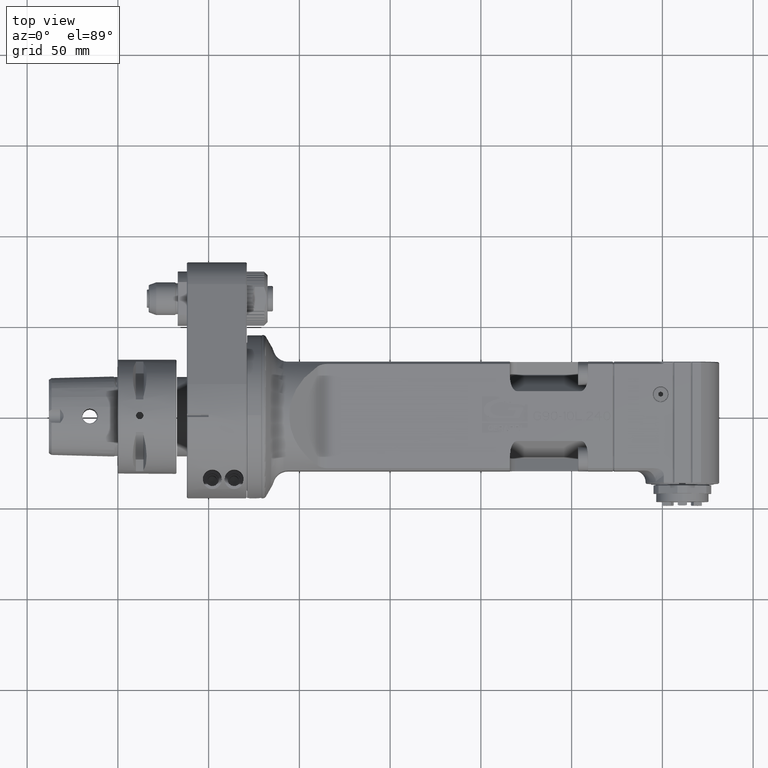
[diagram: clean part render]
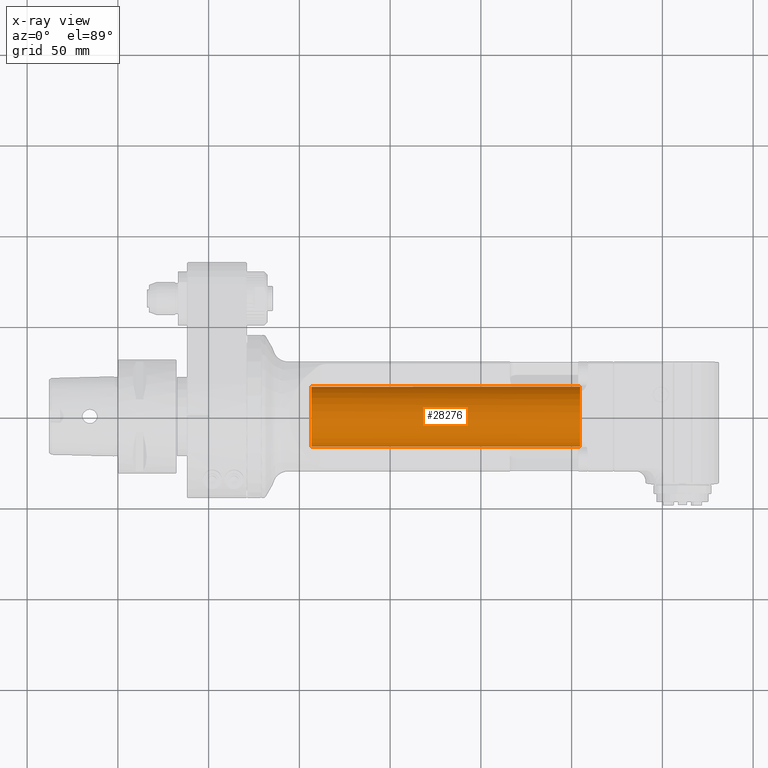
[diagram: x-ray — body ghosted, one internal face saturated and labeled with its STEP entity id]
A machine part, top view, then the same camera in x-ray: the body is ghosted and one INTERNAL B-rep face — a face not visible from any outside direction — is saturated and labeled: STEP entity #28276.
In plain terms, the highlighted cylindrical surface (bore or boss wall) has radius 16.5 mm, axis along (1, 0, 0).
Its self-contained STEP definition (entity closure, byte-faithful):
#2019=CIRCLE('',#30908,16.5);
#2020=CIRCLE('',#30909,16.5);
#2021=CIRCLE('',#30911,16.5);
#2286=CYLINDRICAL_SURFACE('',#30910,16.5);
#3835=FACE_OUTER_BOUND('',#5545,.T.);
#5545=EDGE_LOOP('',(#25689,#25690,#25691,#25692,#25693));
#8155=LINE('',#58934,#10759);
#10759=VECTOR('',#38664,16.5);
#13423=VERTEX_POINT('',#58927);
#13424=VERTEX_POINT('',#58928);
#13425=VERTEX_POINT('',#58933);
#17516=EDGE_CURVE('',#13423,#13424,#2019,.T.);
#17517=EDGE_CURVE('',#13424,#13423,#2020,.T.);
#17519=EDGE_CURVE('',#13423,#13425,#8155,.T.);
#17520=EDGE_CURVE('',#13425,#13425,#2021,.T.);
#25689=ORIENTED_EDGE('',*,*,#17516,.T.);
#25690=ORIENTED_EDGE('',*,*,#17517,.T.);
#25691=ORIENTED_EDGE('',*,*,#17519,.T.);
#25692=ORIENTED_EDGE('',*,*,#17520,.F.);
#25693=ORIENTED_EDGE('',*,*,#17519,.F.);
#28276=ADVANCED_FACE('',(#3835),#2286,.F.);
#30908=AXIS2_PLACEMENT_3D('',#58929,#38657,#38658);
#30909=AXIS2_PLACEMENT_3D('',#58930,#38659,#38660);
#30910=AXIS2_PLACEMENT_3D('',#58932,#38662,#38663);
#30911=AXIS2_PLACEMENT_3D('',#58935,#38665,#38666);
#38657=DIRECTION('center_axis',(0.,-1.,0.));
#38658=DIRECTION('ref_axis',(1.,0.,0.));
#38659=DIRECTION('center_axis',(0.,-1.,0.));
#38660=DIRECTION('ref_axis',(1.,0.,0.));
#38662=DIRECTION('center_axis',(0.,1.,0.));
#38663=DIRECTION('ref_axis',(1.,0.,0.));
#38664=DIRECTION('',(0.,1.,0.));
#38665=DIRECTION('center_axis',(0.,-1.,0.));
#38666=DIRECTION('ref_axis',(1.,0.,0.));
#58927=CARTESIAN_POINT('',(-16.5,60.5991166595732,1.40982728528806E-10));
#58928=CARTESIAN_POINT('',(-5.21038033693031E-14,60.5991166595732,16.5));
#58929=CARTESIAN_POINT('Origin',(0.,60.5991166595732,0.));
#58930=CARTESIAN_POINT('Origin',(0.,60.5991166595732,0.));
#58932=CARTESIAN_POINT('Origin',(0.,-11.4,0.));
#58933=CARTESIAN_POINT('',(-16.5,208.6,2.02066721859313E-15));
#58934=CARTESIAN_POINT('',(-16.5,-11.4,2.02066721859313E-15));
#58935=CARTESIAN_POINT('Origin',(2.555224934709E-14,208.6,0.));